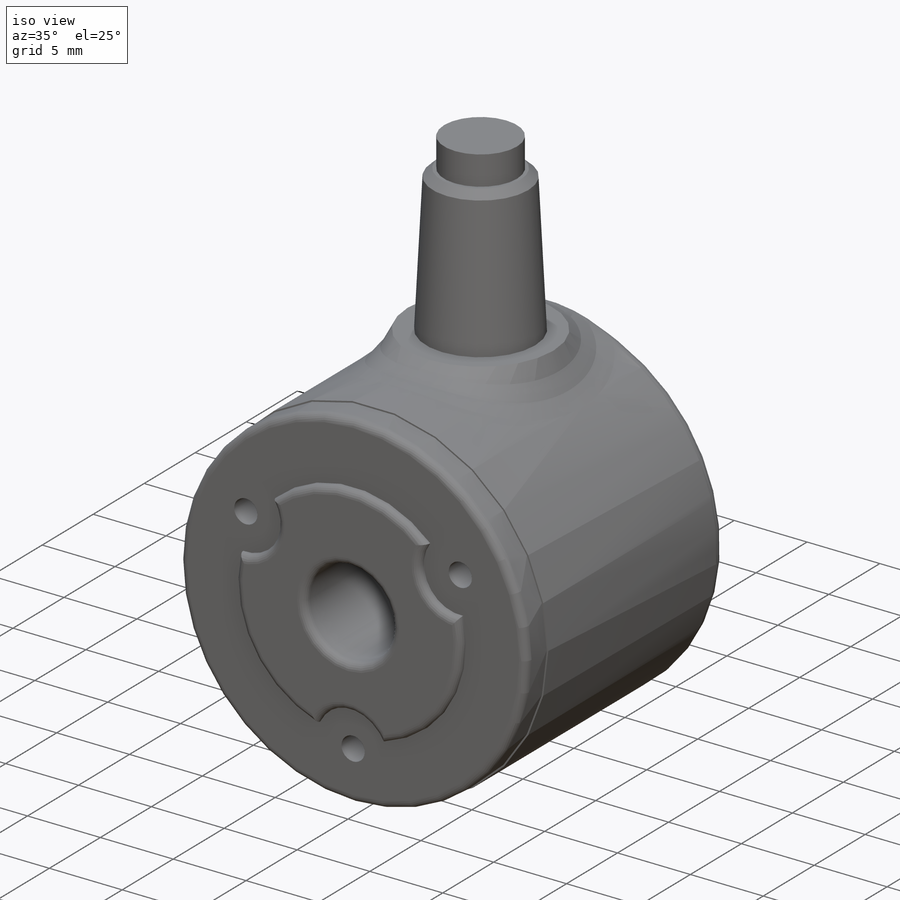
[diagram: iso view]
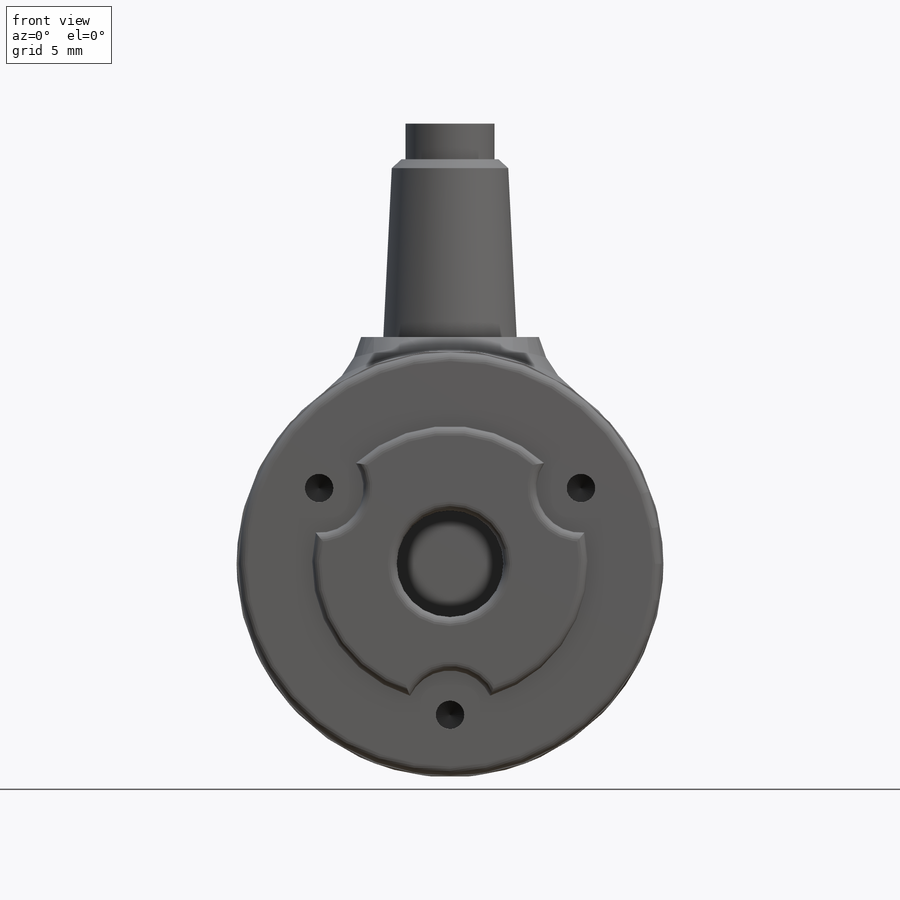
[diagram: front view]
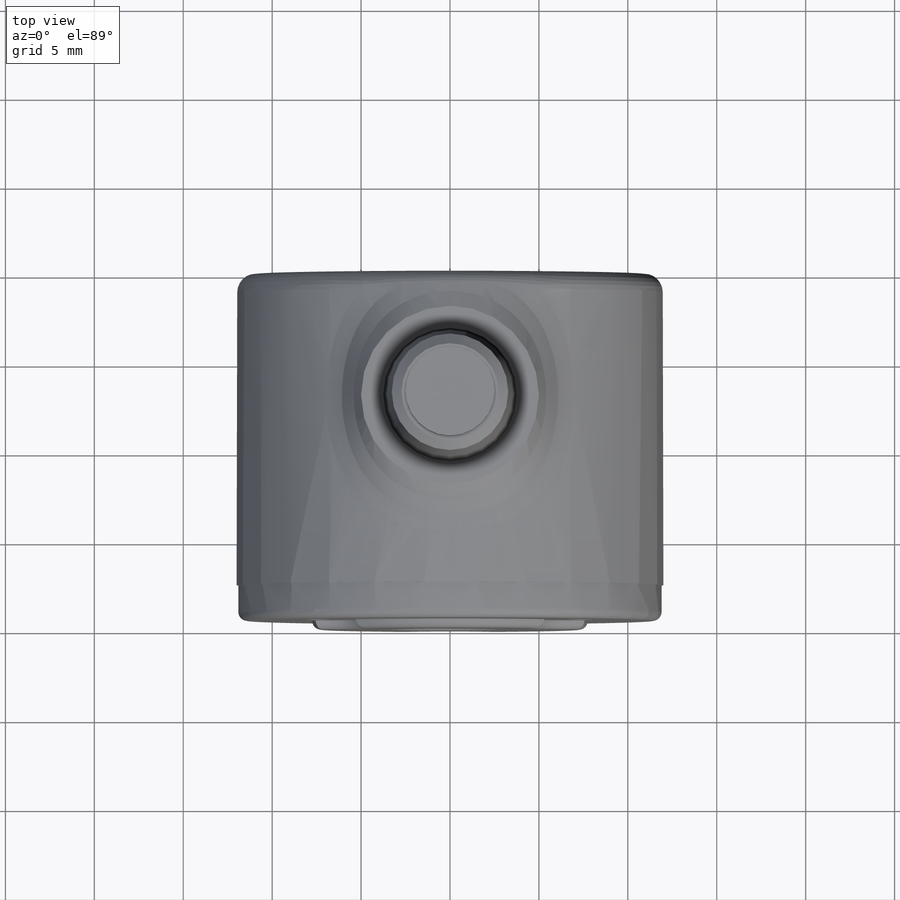
[diagram: top view]
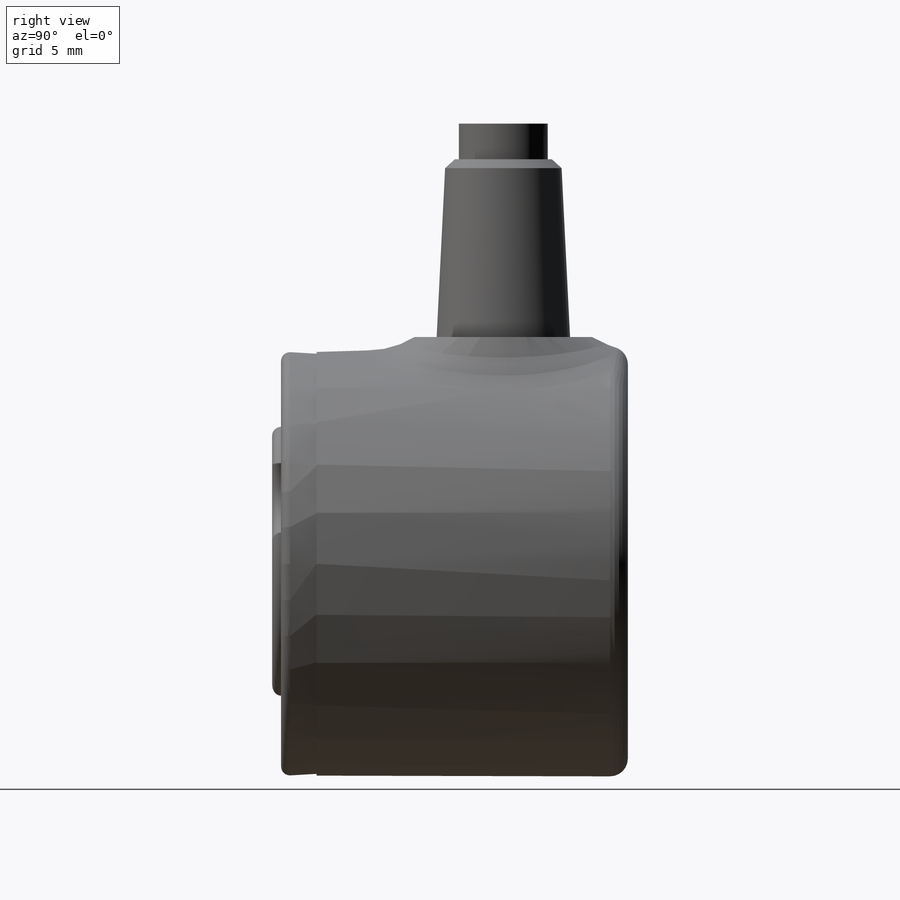
[diagram: right view]
SOLIDWORKS PART (.sldprt)
format: sldprt  version: not decoded by parser v0  size: 500,224 bytes
history: native  units: mm
features: sketch x12, extrude x7, fillet x4, plane x3, cut_extrude x3, thread x3, chamfer x2, material x1, hole x1 (+11 scaffold rows collapsed)
feature tree (47):
  scaffold x11  (default folders/planes/origin — collapsed)
  material  "Matériau <non spécifié>"
  plane  "Face"
  plane  "Dessus"
  plane  "Droite"
  sketch  "Esquisse1"  dims[D1=24.0mm]
  extrude  "Extrusion1"  Depth=17.5mm
  sketch  "Esquisse2"  dims[D1=0.1mm]
  extrude  "Extrusion2"  Depth=2mm
  sketch  "Esquisse3"  dims[D1=11.75mm]
  cut_extrude  "Enlèv. mat.-Extru.1"  Depth=7mm
  sketch  "Esquisse4"  dims[D1=10.0mm]
  extrude  "Extrusion3"  Depth=1mm
  sketch  "Esquisse5"
  extrude  "Extrusion4"  [1 undecoded]
  fillet  "Congé2"  Radius=5mm
  sketch  "Esquisse6"  dims[D1=7.5mm]
  extrude  "Extrusion5"  Depth=10mm
  chamfer  "Chanfrein1"  Distance=10mm
  sketch  "Esquisse7"  dims[D1=5.0mm]
  extrude  "Extrusion6"  Depth=2mm
  chamfer  "Chanfrein2"  Distance=0.5mm Angle=45deg
  fillet  "Congé3"  Radius=1mm
  hole  "Trou taraudé M21"  Diameter=1.6mm Depth=5.2mm
  sketch  "Esquisse9"  dims[c1.D3=~16.363551mm c1.D1=~6.27216mm c2.D1=60.0deg c2.D2=~8.181775mm c3.D2=60.0deg c3.D3=3.5mm]
  sketch  "Esquisse8"  dims[hole-wizard template sketch: 50 standard entries collapsed; hole parameters above]
  thread  "Filetage de perçage1"  Diameter=4mm  [1 undecoded]
  thread  "Filetage de perçage2"  Diameter=4mm  [1 undecoded]
  thread  "Filetage de perçage3"  Diameter=4mm  [1 undecoded]
  sketch  "Esquisse10"  dims[D1=15.5mm]
  extrude  "Extrusion7"  Depth=0.5mm
  fillet  "Congé4"  Radius=0.5mm
  sketch  "Esquisse11"  dims[D1=6.0mm]
  cut_extrude  "Enlèv. mat.-Extru.2"  Depth=9.5mm
  sketch  "Esquisse12"  dims[D1=5.0mm]
  cut_extrude  "Enlèv. mat.-Extru.3"  [1 undecoded]
  fillet  "Congé5"  Radius=0.5mm
decode coverage: 29 of 32 modeling features carry decoded parameters
note: ~ marks probable driven/reference dimensions
note: 5 parameter values undecoded
note: suppression state not decoded; provenance and decode notes live in map.json
